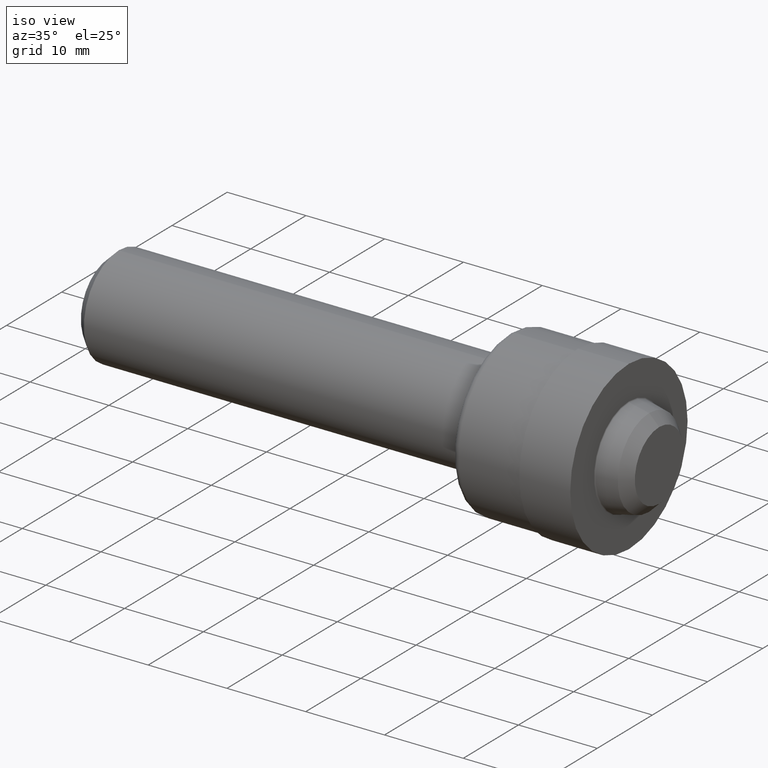
[diagram: clean part render]
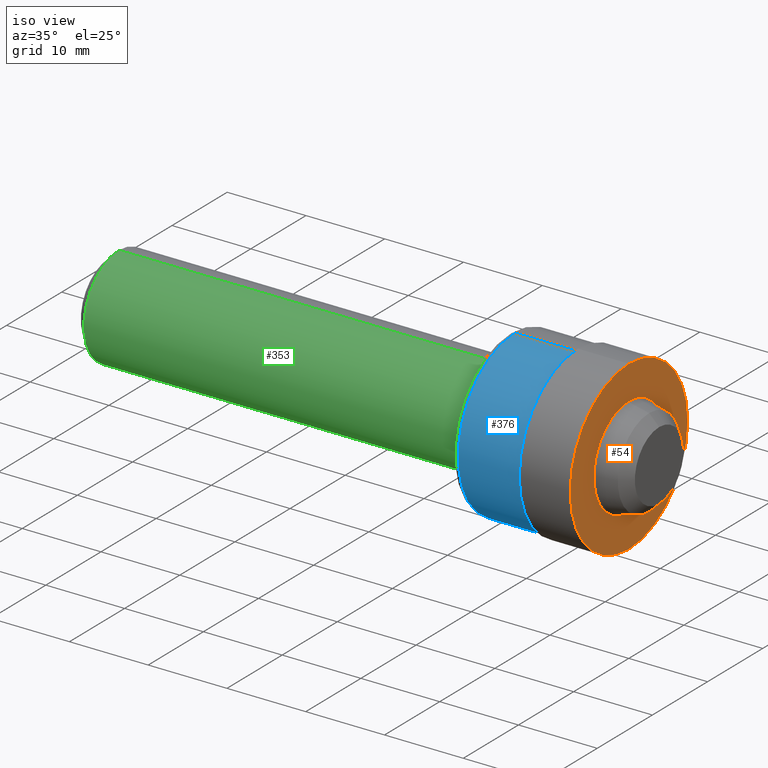
[diagram: same view with three faces highlighted in distinct colors, each labeled with its STEP entity id]
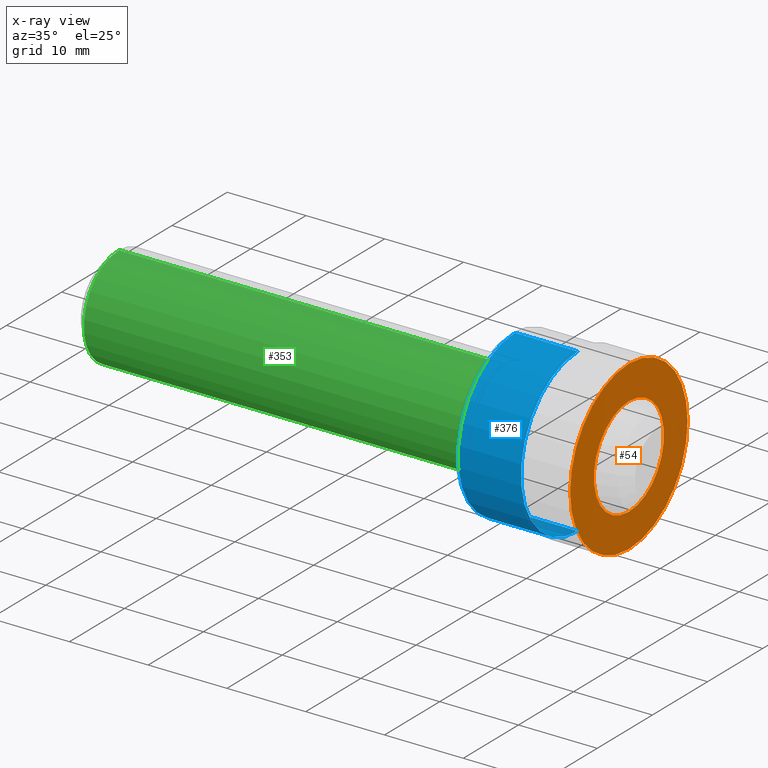
[diagram: x-ray of the same camera — body ghosted, the three highlighted faces saturated]
A machine part, iso view with three faces highlighted in distinct colors.
The next image is the same camera in x-ray (body ghosted, the three faces saturated) — at least one of them is partly hidden behind the body in this view.
Their STEP definitions:

[orange] entity #54 — the highlighted planar face has unit normal (-1, 0, -0).
#1 = DIRECTION ( 'NONE',  ( -1.000000000000000000, -0.000000000000000000, -0.000000000000000000 ) ) ;
#8 = CARTESIAN_POINT ( 'NONE',  ( 2.598999999999999755, 0.000000000000000000, 0.000000000000000000 ) ) ;
#21 = VERTEX_POINT ( 'NONE', #636 ) ;
#24 = CARTESIAN_POINT ( 'NONE',  ( 2.598999999999999755, 0.000000000000000000, 0.000000000000000000 ) ) ;
#50 = CIRCLE ( 'NONE', #415, 0.2500135962157675196 ) ;
#54 = ADVANCED_FACE ( 'NONE', ( #104, #557 ), #143, .F. ) ;
#81 = ORIENTED_EDGE ( 'NONE', *, *, #206, .T. ) ;
#83 = EDGE_CURVE ( 'NONE', #498, #85, #442, .T. ) ;
#85 = VERTEX_POINT ( 'NONE', #401 ) ;
#87 = AXIS2_PLACEMENT_3D ( 'NONE', #8, #197, #346 ) ;
#92 = EDGE_LOOP ( 'NONE', ( #584, #332 ) ) ;
#104 = FACE_OUTER_BOUND ( 'NONE', #92, .T. ) ;
#107 = EDGE_CURVE ( 'NONE', #531, #21, #513, .T. ) ;
#114 = DIRECTION ( 'NONE',  ( -1.000000000000000000, -0.000000000000000000, -0.000000000000000000 ) ) ;
#142 = AXIS2_PLACEMENT_3D ( 'NONE', #296, #555, #599 ) ;
#143 = PLANE ( 'NONE',  #142 ) ;
#146 = DIRECTION ( 'NONE',  ( 0.000000000000000000, 0.000000000000000000, 1.000000000000000000 ) ) ;
#148 = AXIS2_PLACEMENT_3D ( 'NONE', #600, #1, #146 ) ;
#182 = CARTESIAN_POINT ( 'NONE',  ( 2.598999999999999755, 0.000000000000000000, 0.4189999999999999836 ) ) ;
#197 = DIRECTION ( 'NONE',  ( -1.000000000000000000, -0.000000000000000000, -0.000000000000000000 ) ) ;
#206 = EDGE_CURVE ( 'NONE', #21, #531, #50, .T. ) ;
#272 = ORIENTED_EDGE ( 'NONE', *, *, #107, .T. ) ;
#284 = EDGE_CURVE ( 'NONE', #85, #498, #350, .T. ) ;
#296 = CARTESIAN_POINT ( 'NONE',  ( 2.598999999999999755, 0.4189999999999999836, 0.000000000000000000 ) ) ;
#314 = DIRECTION ( 'NONE',  ( 0.000000000000000000, 0.000000000000000000, 1.000000000000000000 ) ) ;
#332 = ORIENTED_EDGE ( 'NONE', *, *, #284, .F. ) ;
#346 = DIRECTION ( 'NONE',  ( 0.000000000000000000, 0.000000000000000000, 1.000000000000000000 ) ) ;
#347 = CARTESIAN_POINT ( 'NONE',  ( 2.598999999999999755, 0.000000000000000000, 0.2500135962157675196 ) ) ;
#350 = CIRCLE ( 'NONE', #524, 0.4189999999999999836 ) ;
#360 = DIRECTION ( 'NONE',  ( -1.000000000000000000, -0.000000000000000000, -0.000000000000000000 ) ) ;
#401 = CARTESIAN_POINT ( 'NONE',  ( 2.598999999999999755, 5.131270088427409669E-17, -0.4189999999999999836 ) ) ;
#415 = AXIS2_PLACEMENT_3D ( 'NONE', #24, #360, #314 ) ;
#442 = CIRCLE ( 'NONE', #148, 0.4189999999999999836 ) ;
#466 = EDGE_LOOP ( 'NONE', ( #272, #81 ) ) ;
#498 = VERTEX_POINT ( 'NONE', #182 ) ;
#513 = CIRCLE ( 'NONE', #87, 0.2500135962157675196 ) ;
#524 = AXIS2_PLACEMENT_3D ( 'NONE', #611, #114, #574 ) ;
#531 = VERTEX_POINT ( 'NONE', #347 ) ;
#555 = DIRECTION ( 'NONE',  ( -1.000000000000000000, 0.000000000000000000, -0.000000000000000000 ) ) ;
#557 = FACE_BOUND ( 'NONE', #466, .T. ) ;
#574 = DIRECTION ( 'NONE',  ( 0.000000000000000000, 0.000000000000000000, 1.000000000000000000 ) ) ;
#584 = ORIENTED_EDGE ( 'NONE', *, *, #83, .F. ) ;
#599 = DIRECTION ( 'NONE',  ( -0.000000000000000000, 0.000000000000000000, 1.000000000000000000 ) ) ;
#600 = CARTESIAN_POINT ( 'NONE',  ( 2.598999999999999755, 0.000000000000000000, 0.000000000000000000 ) ) ;
#611 = CARTESIAN_POINT ( 'NONE',  ( 2.598999999999999755, 0.000000000000000000, 0.000000000000000000 ) ) ;
#636 = CARTESIAN_POINT ( 'NONE',  ( 2.598999999999999755, 3.061783503489585416E-17, -0.2500135962157675196 ) ) ;

[blue] entity #376 — the highlighted cylindrical surface (partial cylindrical patch) has radius 10.3124 mm, axis along (-1, -0, -0).
#7 = CARTESIAN_POINT ( 'NONE',  ( 0.000000000000000000, 4.972066004538254105E-17, -0.4059999999999999720 ) ) ;
#14 = AXIS2_PLACEMENT_3D ( 'NONE', #407, #116, #621 ) ;
#23 = AXIS2_PLACEMENT_3D ( 'NONE', #303, #473, #419 ) ;
#78 = CARTESIAN_POINT ( 'NONE',  ( 2.029999999999999805, 4.972066004538254105E-17, -0.4059999999999999720 ) ) ;
#112 = EDGE_LOOP ( 'NONE', ( #519, #136, #226, #221 ) ) ;
#116 = DIRECTION ( 'NONE',  ( -1.000000000000000000, -0.000000000000000000, -0.000000000000000000 ) ) ;
#122 = VECTOR ( 'NONE', #602, 39.37007874015748143 ) ;
#130 = VERTEX_POINT ( 'NONE', #351 ) ;
#136 = ORIENTED_EDGE ( 'NONE', *, *, #383, .T. ) ;
#138 = LINE ( 'NONE', #7, #122 ) ;
#158 = DIRECTION ( 'NONE',  ( -1.000000000000000000, -0.000000000000000000, -0.000000000000000000 ) ) ;
#160 = CARTESIAN_POINT ( 'NONE',  ( 2.029999999999999805, 0.000000000000000000, 0.4059999999999999720 ) ) ;
#221 = ORIENTED_EDGE ( 'NONE', *, *, #454, .F. ) ;
#226 = ORIENTED_EDGE ( 'NONE', *, *, #625, .T. ) ;
#254 = CIRCLE ( 'NONE', #23, 0.4060000000000000275 ) ;
#303 = CARTESIAN_POINT ( 'NONE',  ( 2.343999999999999861, 0.000000000000000000, 0.000000000000000000 ) ) ;
#313 = EDGE_CURVE ( 'NONE', #130, #490, #138, .T. ) ;
#351 = CARTESIAN_POINT ( 'NONE',  ( 2.343999999999999861, 4.972066004538254721E-17, -0.4060000000000000275 ) ) ;
#355 = CARTESIAN_POINT ( 'NONE',  ( 0.000000000000000000, 0.000000000000000000, 0.4059999999999999720 ) ) ;
#366 = DIRECTION ( 'NONE',  ( 0.000000000000000000, 0.000000000000000000, 1.000000000000000000 ) ) ;
#367 = VERTEX_POINT ( 'NONE', #160 ) ;
#376 = ADVANCED_FACE ( 'NONE', ( #570 ), #565, .T. ) ;
#383 = EDGE_CURVE ( 'NONE', #130, #525, #254, .T. ) ;
#390 = CARTESIAN_POINT ( 'NONE',  ( 2.343999999999999861, 0.000000000000000000, 0.4060000000000000275 ) ) ;
#395 = AXIS2_PLACEMENT_3D ( 'NONE', #618, #158, #366 ) ;
#407 = CARTESIAN_POINT ( 'NONE',  ( 0.000000000000000000, 0.000000000000000000, 0.000000000000000000 ) ) ;
#419 = DIRECTION ( 'NONE',  ( 0.000000000000000000, 0.000000000000000000, 1.000000000000000000 ) ) ;
#454 = EDGE_CURVE ( 'NONE', #490, #367, #586, .T. ) ;
#472 = LINE ( 'NONE', #355, #526 ) ;
#473 = DIRECTION ( 'NONE',  ( -1.000000000000000000, -0.000000000000000000, -0.000000000000000000 ) ) ;
#490 = VERTEX_POINT ( 'NONE', #78 ) ;
#519 = ORIENTED_EDGE ( 'NONE', *, *, #313, .F. ) ;
#525 = VERTEX_POINT ( 'NONE', #390 ) ;
#526 = VECTOR ( 'NONE', #564, 39.37007874015748143 ) ;
#564 = DIRECTION ( 'NONE',  ( -1.000000000000000000, -0.000000000000000000, -0.000000000000000000 ) ) ;
#565 = CYLINDRICAL_SURFACE ( 'NONE', #14, 0.4059999999999999720 ) ;
#570 = FACE_OUTER_BOUND ( 'NONE', #112, .T. ) ;
#586 = CIRCLE ( 'NONE', #395, 0.4059999999999999720 ) ;
#602 = DIRECTION ( 'NONE',  ( -1.000000000000000000, -0.000000000000000000, -0.000000000000000000 ) ) ;
#618 = CARTESIAN_POINT ( 'NONE',  ( 2.029999999999999805, 0.000000000000000000, 0.000000000000000000 ) ) ;
#621 = DIRECTION ( 'NONE',  ( 0.000000000000000000, 0.000000000000000000, 1.000000000000000000 ) ) ;
#625 = EDGE_CURVE ( 'NONE', #525, #367, #472, .T. ) ;

[green] entity #353 — the highlighted cylindrical surface (partial cylindrical patch) has radius 6.35 mm, axis along (-1, -0, -0).
#16 = DIRECTION ( 'NONE',  ( -1.000000000000000000, -0.000000000000000000, -0.000000000000000000 ) ) ;
#29 = EDGE_CURVE ( 'NONE', #539, #594, #101, .T. ) ;
#42 = EDGE_CURVE ( 'NONE', #594, #378, #547, .T. ) ;
#47 = ORIENTED_EDGE ( 'NONE', *, *, #29, .F. ) ;
#59 = CARTESIAN_POINT ( 'NONE',  ( 1.969999999999999973, 0.000000000000000000, 0.2500000000000000000 ) ) ;
#61 = CIRCLE ( 'NONE', #484, 0.2500000000000000000 ) ;
#71 = DIRECTION ( 'NONE',  ( 0.000000000000000000, 0.000000000000000000, 1.000000000000000000 ) ) ;
#101 = LINE ( 'NONE', #348, #462 ) ;
#109 = CYLINDRICAL_SURFACE ( 'NONE', #575, 0.2500000000000000000 ) ;
#153 = CARTESIAN_POINT ( 'NONE',  ( 0.000000000000000000, 0.000000000000000000, 0.2500000000000000000 ) ) ;
#207 = FACE_OUTER_BOUND ( 'NONE', #629, .T. ) ;
#208 = LINE ( 'NONE', #153, #506 ) ;
#243 = DIRECTION ( 'NONE',  ( 0.000000000000000000, 0.000000000000000000, 1.000000000000000000 ) ) ;
#246 = CARTESIAN_POINT ( 'NONE',  ( 0.05000000000000000278, 0.000000000000000000, 0.000000000000000000 ) ) ;
#256 = AXIS2_PLACEMENT_3D ( 'NONE', #246, #595, #243 ) ;
#265 = DIRECTION ( 'NONE',  ( -1.000000000000000000, -0.000000000000000000, -0.000000000000000000 ) ) ;
#278 = ORIENTED_EDGE ( 'NONE', *, *, #447, .T. ) ;
#279 = CARTESIAN_POINT ( 'NONE',  ( 1.969999999999999973, 0.000000000000000000, 0.000000000000000000 ) ) ;
#288 = ORIENTED_EDGE ( 'NONE', *, *, #42, .F. ) ;
#334 = ORIENTED_EDGE ( 'NONE', *, *, #608, .T. ) ;
#348 = CARTESIAN_POINT ( 'NONE',  ( 0.000000000000000000, 3.061616997868383018E-17, -0.2500000000000000000 ) ) ;
#353 = ADVANCED_FACE ( 'NONE', ( #207 ), #109, .T. ) ;
#378 = VERTEX_POINT ( 'NONE', #522 ) ;
#393 = VERTEX_POINT ( 'NONE', #59 ) ;
#437 = DIRECTION ( 'NONE',  ( 0.000000000000000000, 0.000000000000000000, 1.000000000000000000 ) ) ;
#447 = EDGE_CURVE ( 'NONE', #539, #393, #61, .T. ) ;
#462 = VECTOR ( 'NONE', #16, 39.37007874015748143 ) ;
#484 = AXIS2_PLACEMENT_3D ( 'NONE', #279, #535, #437 ) ;
#506 = VECTOR ( 'NONE', #265, 39.37007874015748143 ) ;
#522 = CARTESIAN_POINT ( 'NONE',  ( 0.05000000000000000278, 0.000000000000000000, 0.2500000000000000000 ) ) ;
#535 = DIRECTION ( 'NONE',  ( -1.000000000000000000, -0.000000000000000000, -0.000000000000000000 ) ) ;
#539 = VERTEX_POINT ( 'NONE', #551 ) ;
#547 = CIRCLE ( 'NONE', #256, 0.2500000000000000000 ) ;
#551 = CARTESIAN_POINT ( 'NONE',  ( 1.969999999999999973, 3.245314017740486209E-17, -0.2500000000000000000 ) ) ;
#556 = CARTESIAN_POINT ( 'NONE',  ( 0.05000000000000000278, 3.061616997868383018E-17, -0.2500000000000000000 ) ) ;
#573 = CARTESIAN_POINT ( 'NONE',  ( 0.000000000000000000, 0.000000000000000000, 0.000000000000000000 ) ) ;
#575 = AXIS2_PLACEMENT_3D ( 'NONE', #573, #610, #71 ) ;
#594 = VERTEX_POINT ( 'NONE', #556 ) ;
#595 = DIRECTION ( 'NONE',  ( -1.000000000000000000, -0.000000000000000000, -0.000000000000000000 ) ) ;
#608 = EDGE_CURVE ( 'NONE', #393, #378, #208, .T. ) ;
#610 = DIRECTION ( 'NONE',  ( -1.000000000000000000, -0.000000000000000000, -0.000000000000000000 ) ) ;
#629 = EDGE_LOOP ( 'NONE', ( #47, #278, #334, #288 ) ) ;